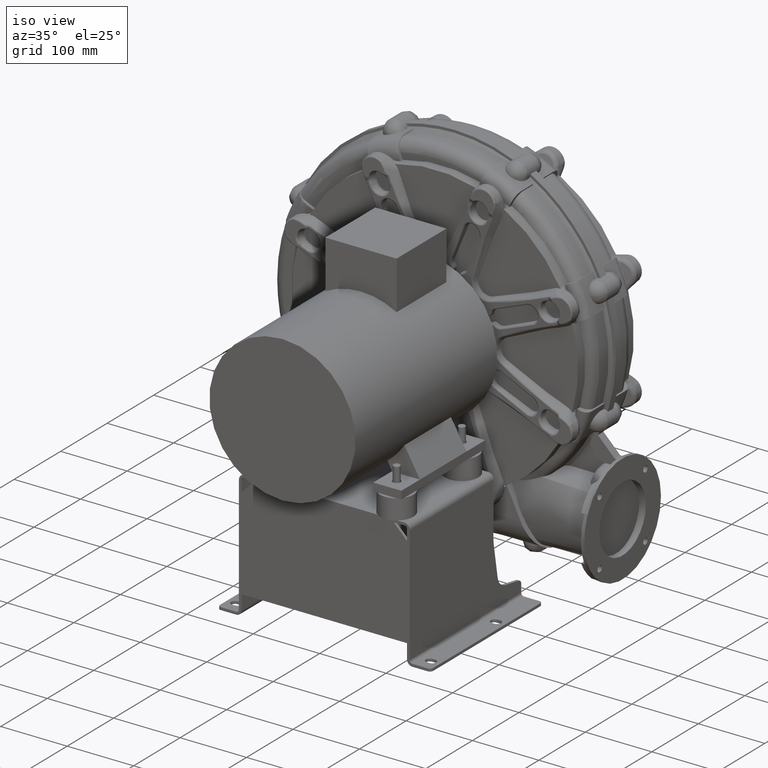
[diagram: clean part render]
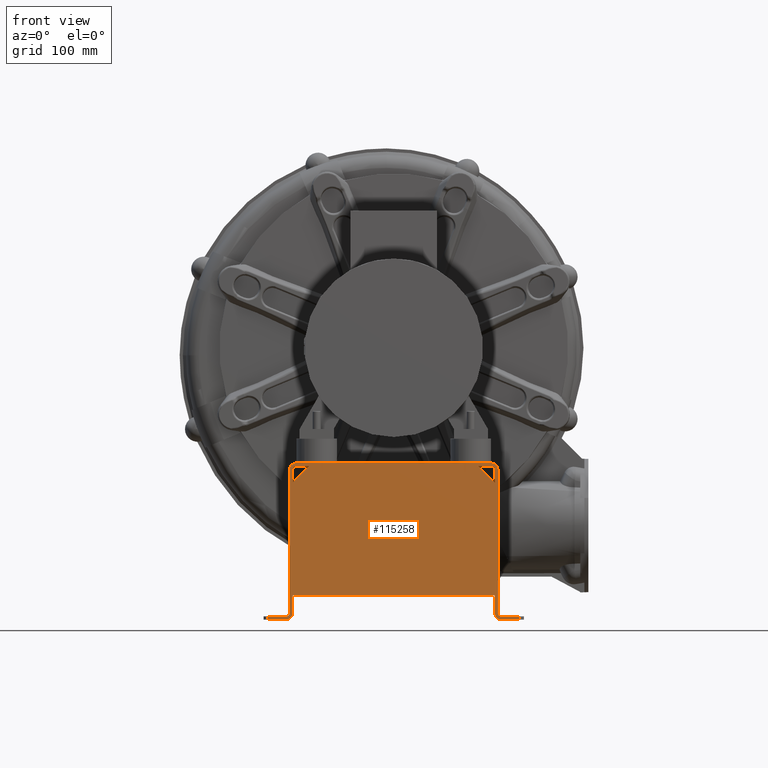
[diagram: tour spotlight — one face highlighted and labeled with its STEP entity id]
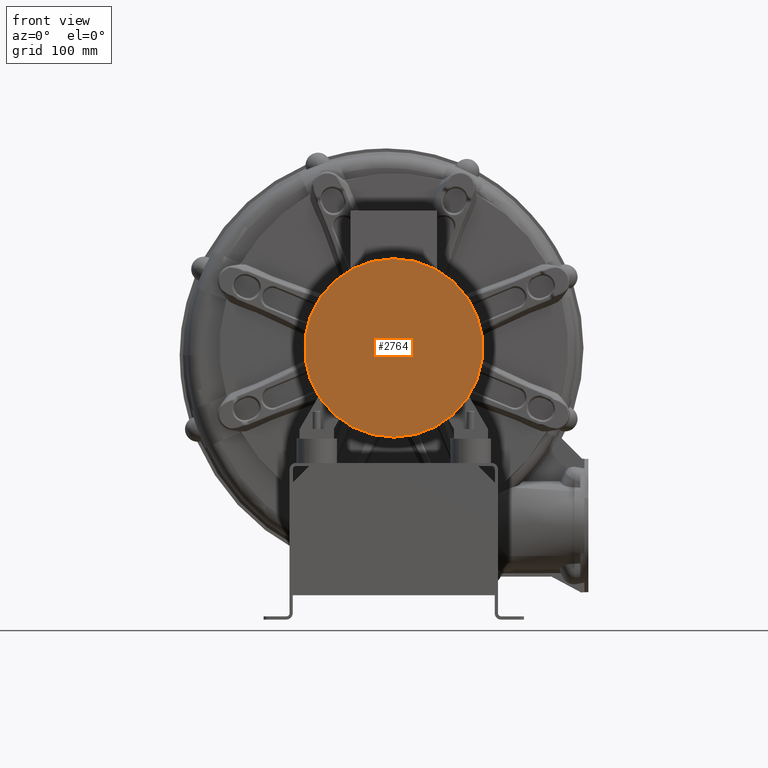
[diagram: tour spotlight — one face highlighted and labeled with its STEP entity id]
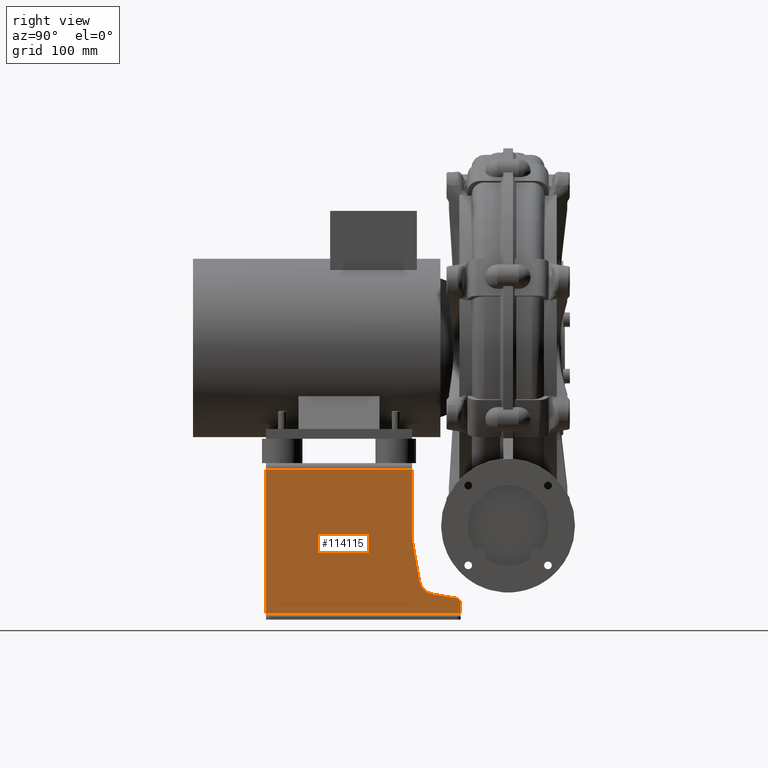
[diagram: tour spotlight — one face highlighted and labeled with its STEP entity id]
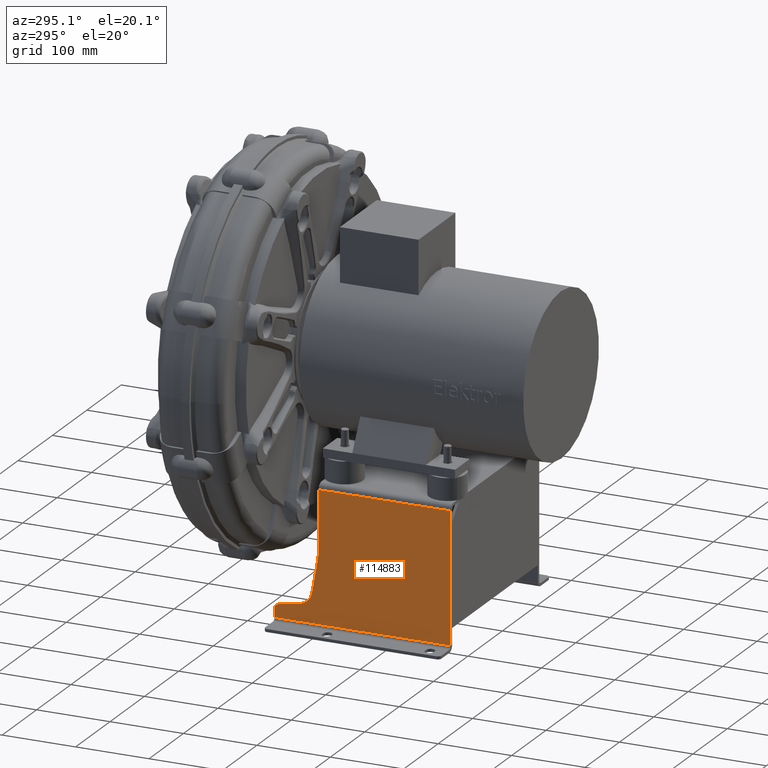
[diagram: tour spotlight — one face highlighted and labeled with its STEP entity id]
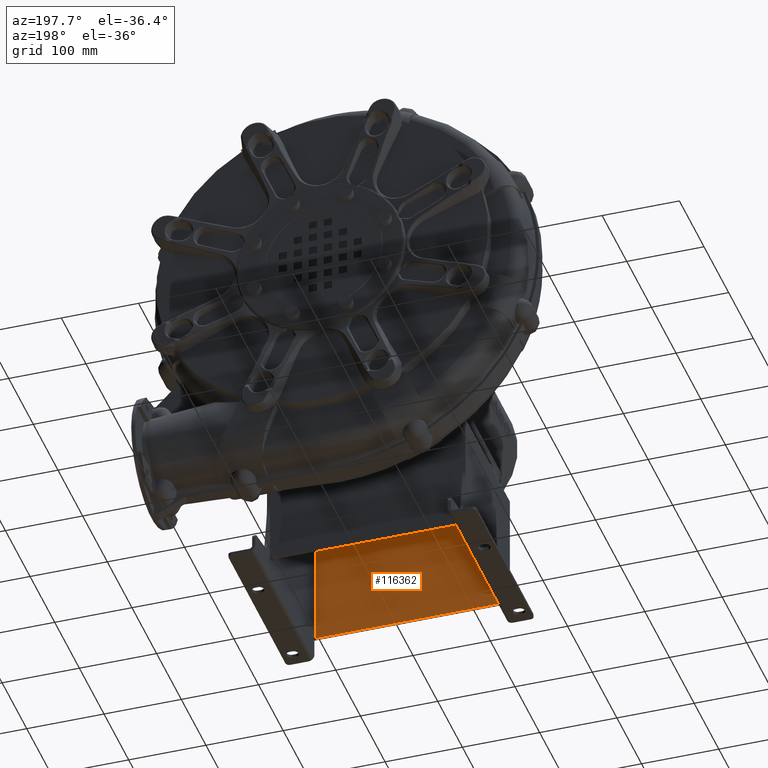
[diagram: tour spotlight — one face highlighted and labeled with its STEP entity id]
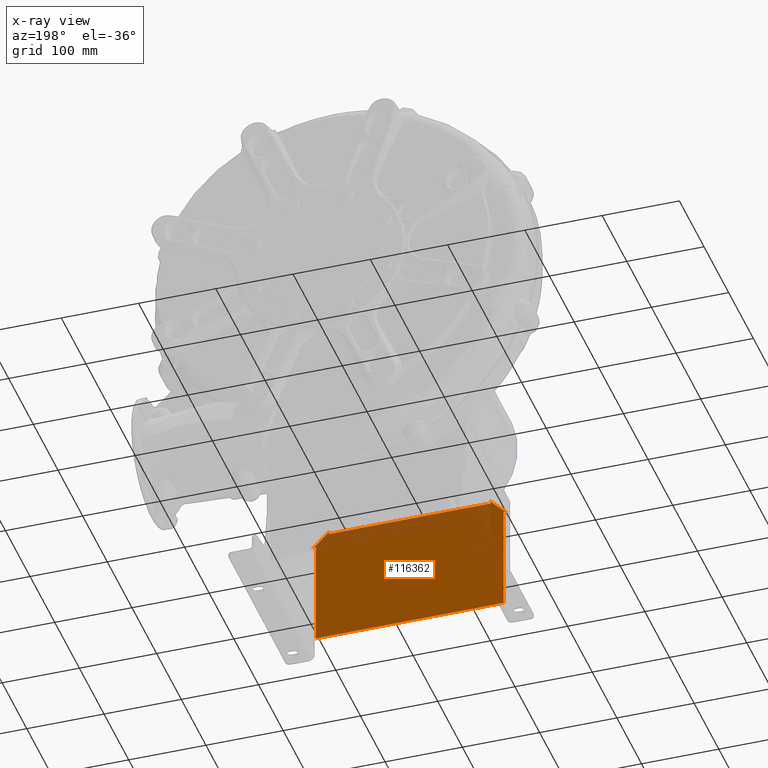
[diagram: x-ray of the same camera — body ghosted, this tour face saturated]
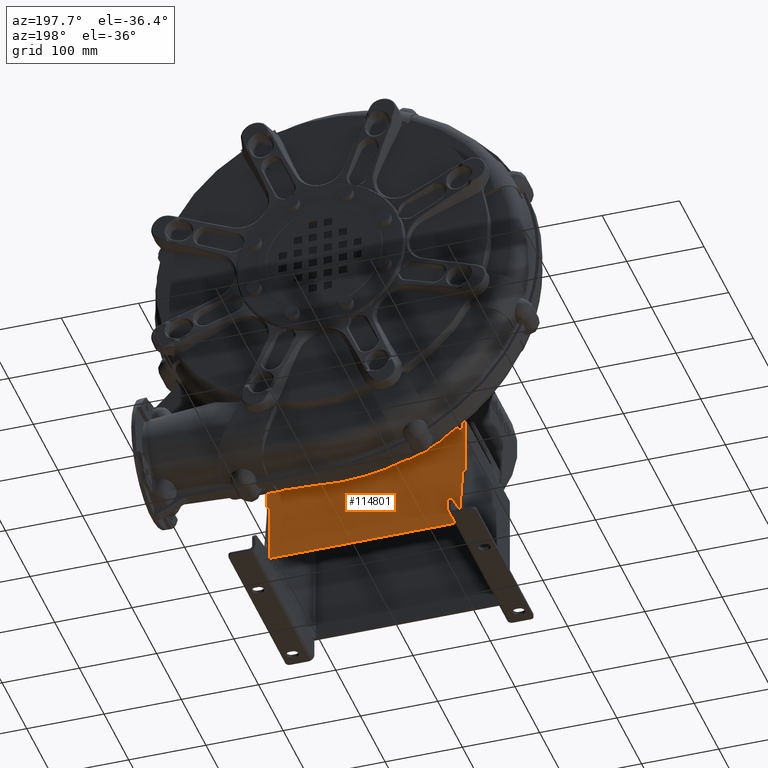
[diagram: tour spotlight — one face highlighted and labeled with its STEP entity id]
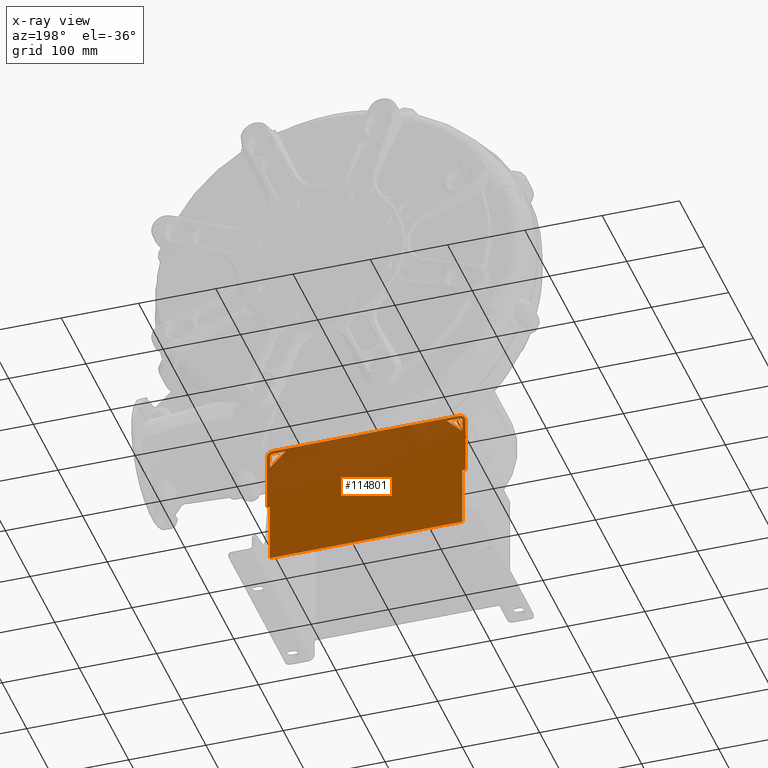
[diagram: x-ray of the same camera — body ghosted, this tour face saturated]
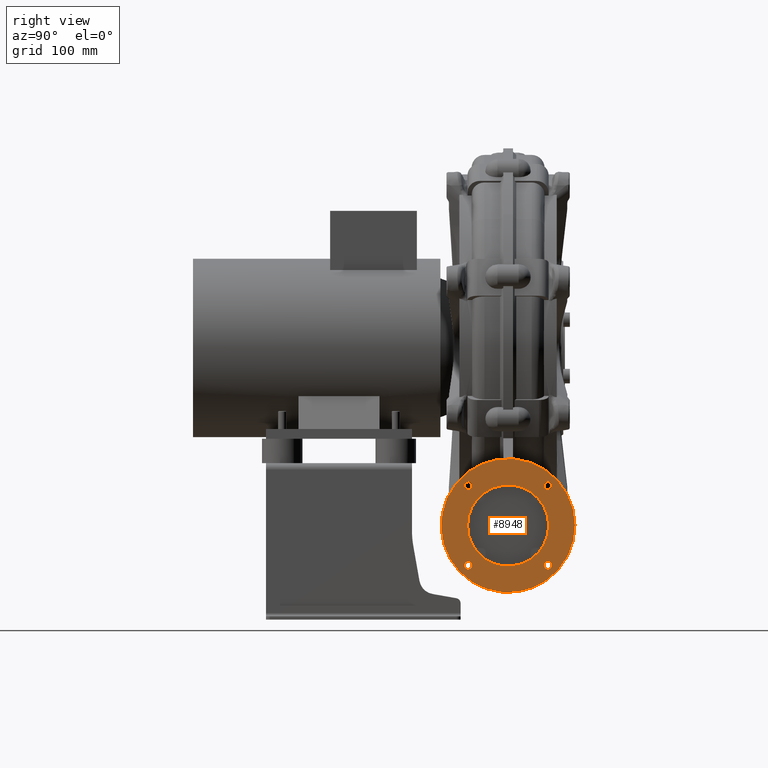
[diagram: tour spotlight — one face highlighted and labeled with its STEP entity id]
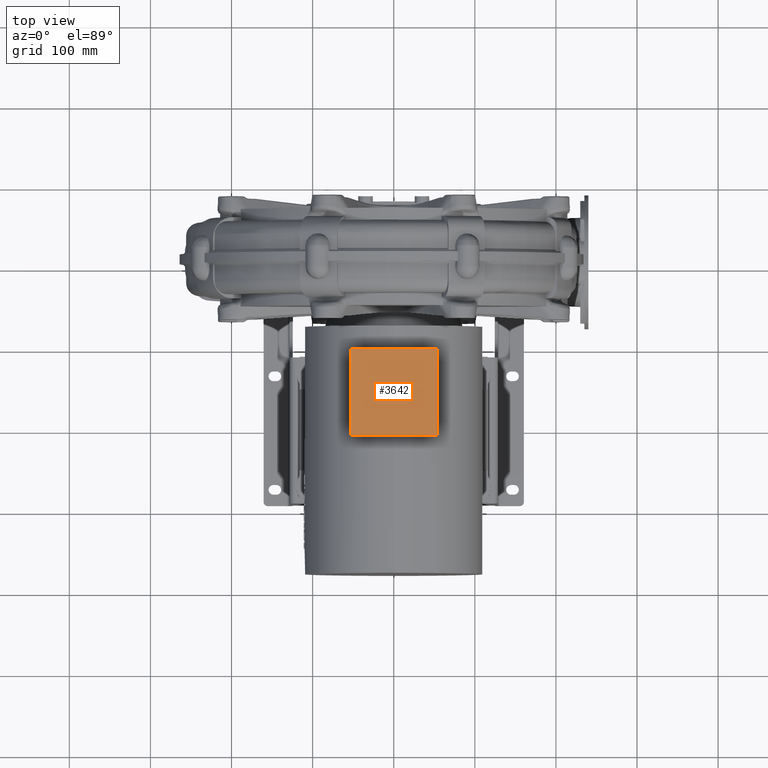
[diagram: tour spotlight — one face highlighted and labeled with its STEP entity id]
A machine part: a face-by-face anatomy tour. The part has 2756 B-rep faces; the first image is the clean iso view, then the 8 largest visible faces are spotlighted one at a time (largest first), each with its STEP entity span.

Face 1 — front view, entity #115258. In plain terms, the highlighted planar face has unit normal (0, -1, 0).
Definition (entity closure, byte-faithful):
#1541=CARTESIAN_POINT('',(120.50000000000003,-90.0,5.551115E-016));
#1542=VERTEX_POINT('',#1541);
#1549=CARTESIAN_POINT('',(104.5,-90.0,0.0));
#1550=VERTEX_POINT('',#1549);
#1551=CARTESIAN_POINT('',(120.50000000000003,-90.0,0.0));
#1552=DIRECTION('',(-1.0,0.0,0.0));
#1553=VECTOR('',#1552,16.000000000000043);
#1554=LINE('',#1551,#1553);
#1555=EDGE_CURVE('',#1542,#1550,#1554,.T.);
#1566=CARTESIAN_POINT('',(-104.49999999999996,-90.0,0.0));
#1567=VERTEX_POINT('',#1566);
#1574=CARTESIAN_POINT('',(-120.50000000000003,-90.0,5.551115E-016));
#1575=VERTEX_POINT('',#1574);
#1576=CARTESIAN_POINT('',(-104.49999999999994,-90.0,0.0));
#1577=DIRECTION('',(-1.0,0.0,0.0));
#1578=VECTOR('',#1577,16.000000000000085);
#1579=LINE('',#1576,#1578);
#1580=EDGE_CURVE('',#1567,#1575,#1579,.T.);
#2312=CARTESIAN_POINT('',(-110.0,-90.0,4.000000000000002));
#2313=VERTEX_POINT('',#2312);
#2314=CARTESIAN_POINT('',(-80.000000000000114,-90.0,4.000000000000002));
#2315=VERTEX_POINT('',#2314);
#2338=CARTESIAN_POINT('',(-80.000000000000142,-90.0,4.0));
#2339=DIRECTION('',(-1.0,0.0,0.0));
#2340=VECTOR('',#2339,29.999999999999829);
#2341=LINE('',#2338,#2340);
#2342=EDGE_CURVE('',#2315,#2313,#2341,.T.);
#113823=CARTESIAN_POINT('',(-120.50000000000003,-90.0,4.0));
#113824=VERTEX_POINT('',#113823);
#113831=CARTESIAN_POINT('',(-109.99999999999997,-90.0,4.0));
#113832=DIRECTION('',(-1.0,0.0,0.0));
#113833=VECTOR('',#113832,10.500000000000057);
#113834=LINE('',#113831,#113833);
#113835=EDGE_CURVE('',#2313,#113824,#113834,.T.);
#113838=CARTESIAN_POINT('',(80.000000000000071,-90.000000000000014,3.999999999999986));
#113839=VERTEX_POINT('',#113838);
#113840=CARTESIAN_POINT('',(80.000000000000028,-90.0,4.0));
#113841=DIRECTION('',(-1.0,0.0,0.0));
#113842=VECTOR('',#113841,160.00000000000017);
#113843=LINE('',#113840,#113842);
#113844=EDGE_CURVE('',#113839,#2315,#113843,.T.);
#113846=CARTESIAN_POINT('',(109.99999999999997,-90.000000000000014,3.999999999999986));
#113847=VERTEX_POINT('',#113846);
#113855=CARTESIAN_POINT('',(120.50000000000003,-90.0,4.0));
#113856=VERTEX_POINT('',#113855);
#113857=CARTESIAN_POINT('',(120.50000000000003,-90.0,4.0));
#113858=DIRECTION('',(-1.0,0.0,0.0));
#113859=VECTOR('',#113858,10.500000000000028);
#113860=LINE('',#113857,#113859);
#113861=EDGE_CURVE('',#113856,#113847,#113860,.T.);
#113894=CARTESIAN_POINT('',(124.50000000000001,-90.0,-4.000000000000004));
#113895=VERTEX_POINT('',#113894);
#113902=CARTESIAN_POINT('',(120.5,-90.0,-4.000000000000002));
#113903=DIRECTION('',(0.0,1.0,0.0));
#113904=DIRECTION('',(0.0,0.0,1.0));
#113905=AXIS2_PLACEMENT_3D('',#113902,#113903,#113904);
#113906=CIRCLE('',#113905,4.000000000000002);
#113907=EDGE_CURVE('',#1542,#113895,#113906,.T.);
#113925=CARTESIAN_POINT('',(128.5,-90.0,-4.000000000000004));
#113926=VERTEX_POINT('',#113925);
#113943=CARTESIAN_POINT('',(120.5,-90.0,-4.000000000000002));
#113944=DIRECTION('',(0.0,1.0,0.0));
#113945=DIRECTION('',(0.0,0.0,1.0));
#113946=AXIS2_PLACEMENT_3D('',#113943,#113944,#113945);
#113947=CIRCLE('',#113946,8.000000000000002);
#113948=EDGE_CURVE('',#113856,#113926,#113947,.T.);
#114064=CARTESIAN_POINT('',(128.5,-90.000000000000014,-181.0));
#114065=VERTEX_POINT('',#114064);
#114107=CARTESIAN_POINT('',(128.50000000000003,-90.000000000000014,-4.000000000000005));
#114108=DIRECTION('',(0.0,0.0,-1.0));
#114109=VECTOR('',#114108,177.0);
#114110=LINE('',#114107,#114109);
#114111=EDGE_CURVE('',#113926,#114065,#114110,.T.);
#114123=CARTESIAN_POINT('',(132.50000000000003,-90.000000000000014,-188.99999999999991));
#114124=VERTEX_POINT('',#114123);
#114131=CARTESIAN_POINT('',(124.50000000000001,-90.000000000000014,-181.0));
#114132=VERTEX_POINT('',#114131);
#114133=CARTESIAN_POINT('',(132.5,-90.000000000000014,-180.99999999999994));
#114134=DIRECTION('',(0.0,-1.0,0.0));
#114135=DIRECTION('',(-1.0,0.0,0.0));
#114136=AXIS2_PLACEMENT_3D('',#114133,#114134,#114135);
#114137=CIRCLE('',#114136,7.999999999999989);
#114138=EDGE_CURVE('',#114132,#114124,#114137,.T.);
#114163=CARTESIAN_POINT('',(132.50000000000003,-90.000000000000014,-184.99999999999994));
#114164=VERTEX_POINT('',#114163);
#114181=CARTESIAN_POINT('',(132.5,-90.000000000000014,-180.99999999999994));
#114182=DIRECTION('',(0.0,-1.0,0.0));
#114183=DIRECTION('',(-1.0,0.0,0.0));
#114184=AXIS2_PLACEMENT_3D('',#114181,#114182,#114183);
#114185=CIRCLE('',#114184,3.999999999999986);
#114186=EDGE_CURVE('',#114065,#114164,#114185,.T.);
#114198=CARTESIAN_POINT('',(155.5,-90.000000000000014,-185.00000000000003));
#114199=VERTEX_POINT('',#114198);
#114231=CARTESIAN_POINT('',(155.5,-90.000000000000014,-185.00000000000003));
#114232=DIRECTION('',(-1.0,0.0,0.0));
#114233=VECTOR('',#114232,23.0);
#114234=LINE('',#114231,#114233);
#114235=EDGE_CURVE('',#114199,#114164,#114234,.T.);
#114375=CARTESIAN_POINT('',(155.5,-90.000000000000014,-189.00000000000003));
#114376=VERTEX_POINT('',#114375);
#114386=CARTESIAN_POINT('',(132.5,-90.000000000000014,-189.00000000000003));
#114387=DIRECTION('',(1.0,0.0,0.0));
#114388=VECTOR('',#114387,23.0);
#114389=LINE('',#114386,#114388);
#114390=EDGE_CURVE('',#114124,#114376,#114389,.T.);
#114499=CARTESIAN_POINT('',(155.5,-90.000000000000014,-185.00000000000006));
#114500=DIRECTION('',(0.0,0.0,-1.0));
#114501=VECTOR('',#114500,3.999999999999972);
#114502=LINE('',#114499,#114501);
#114503=EDGE_CURVE('',#114199,#114376,#114502,.T.);
#114809=CARTESIAN_POINT('',(-128.5,-90.000000000000014,-181.0));
#114810=VERTEX_POINT('',#114809);
#114817=CARTESIAN_POINT('',(-128.50000000000003,-90.0,-4.000000000000003));
#114818=VERTEX_POINT('',#114817);
#114819=CARTESIAN_POINT('',(-128.50000000000003,-90.000000000000014,-4.000000000000004));
#114820=DIRECTION('',(0.0,0.0,-1.0));
#114821=VECTOR('',#114820,177.0);
#114822=LINE('',#114819,#114821);
#114823=EDGE_CURVE('',#114818,#114810,#114822,.T.);
#114889=CARTESIAN_POINT('',(-124.50000000000001,-90.0,-4.000000000000002));
#114890=VERTEX_POINT('',#114889);
#114899=CARTESIAN_POINT('',(-120.5,-90.0,-4.000000000000002));
#114900=DIRECTION('',(0.0,-1.0,0.0));
#114901=DIRECTION('',(0.0,0.0,1.0));
#114902=AXIS2_PLACEMENT_3D('',#114899,#114900,#114901);
#114903=CIRCLE('',#114902,4.000000000000002);
#114904=EDGE_CURVE('',#1575,#114890,#114903,.T.);
#114915=CARTESIAN_POINT('',(-120.5,-90.0,-4.000000000000002));
#114916=DIRECTION('',(0.0,-1.0,0.0));
#114917=DIRECTION('',(0.0,0.0,1.0));
#114918=AXIS2_PLACEMENT_3D('',#114915,#114916,#114917);
#114919=CIRCLE('',#114918,8.000000000000002);
#114920=EDGE_CURVE('',#113824,#114818,#114919,.T.);
#115071=CARTESIAN_POINT('',(-124.49999999999994,-89.999999999999986,-159.0));
#115072=VERTEX_POINT('',#115071);
#115079=CARTESIAN_POINT('',(-124.50000000000001,-90.000000000000014,-181.0));
#115080=VERTEX_POINT('',#115079);
#115081=CARTESIAN_POINT('',(-124.50000000000001,-90.000000000000014,-159.0));
#115082=DIRECTION('',(0.0,0.0,-1.0));
#115083=VECTOR('',#115082,22.0);
#115084=LINE('',#115081,#115083);
#115085=EDGE_CURVE('',#115072,#115080,#115084,.T.);
#115129=CARTESIAN_POINT('',(-124.49999999999996,-90.0,-20.0));
#115130=VERTEX_POINT('',#115129);
#115131=CARTESIAN_POINT('',(-124.50000000000003,-90.000000000000014,-4.000000000000004));
#115132=DIRECTION('',(0.0,0.0,-1.0));
#115133=VECTOR('',#115132,15.999999999999996);
#115134=LINE('',#115131,#115133);
#115135=EDGE_CURVE('',#114890,#115130,#115134,.T.);
#115148=CARTESIAN_POINT('',(160.5,-90.000000000000014,-189.00000000000003));
#115149=DIRECTION('',(0.0,-1.0,0.0));
#115150=DIRECTION('',(0.0,0.0,-1.0));
#115151=AXIS2_PLACEMENT_3D('',#115148,#115149,#115150);
#115152=PLANE('',#115151);
#115153=CARTESIAN_POINT('',(124.5,-89.999999999999986,-159.0));
#115154=VERTEX_POINT('',#115153);
#115155=CARTESIAN_POINT('',(124.50000000000001,-90.000000000000014,-159.0));
#115156=DIRECTION('',(0.0,0.0,-1.0));
#115157=VECTOR('',#115156,22.0);
#115158=LINE('',#115155,#115157);
#115159=EDGE_CURVE('',#115154,#114132,#115158,.T.);
#115160=ORIENTED_EDGE('',*,*,#115159,.T.);
#115161=ORIENTED_EDGE('',*,*,#114138,.T.);
#115162=ORIENTED_EDGE('',*,*,#114390,.T.);
#115163=ORIENTED_EDGE('',*,*,#114503,.F.);
#115164=ORIENTED_EDGE('',*,*,#114235,.T.);
#115165=ORIENTED_EDGE('',*,*,#114186,.F.);
#115166=ORIENTED_EDGE('',*,*,#114111,.F.);
#115167=ORIENTED_EDGE('',*,*,#113948,.F.);
#115168=ORIENTED_EDGE('',*,*,#113861,.T.);
#115169=CARTESIAN_POINT('',(110.0,-90.0,4.0));
#115170=DIRECTION('',(-1.0,0.0,0.0));
#115171=VECTOR('',#115170,29.999999999999972);
#115172=LINE('',#115169,#115171);
#115173=EDGE_CURVE('',#113847,#113839,#115172,.T.);
#115174=ORIENTED_EDGE('',*,*,#115173,.T.);
#115175=ORIENTED_EDGE('',*,*,#113844,.T.);
#115176=ORIENTED_EDGE('',*,*,#2342,.T.);
#115177=ORIENTED_EDGE('',*,*,#113835,.T.);
#115178=ORIENTED_EDGE('',*,*,#114920,.T.);
#115179=ORIENTED_EDGE('',*,*,#114823,.T.);
#115180=CARTESIAN_POINT('',(-132.50000000000006,-90.000000000000014,-184.99999999999997));
#115181=VERTEX_POINT('',#115180);
#115182=CARTESIAN_POINT('',(-132.5,-90.000000000000014,-180.99999999999994));
#115183=DIRECTION('',(0.0,1.0,0.0));
#115184=DIRECTION('',(1.0,0.0,0.0));
#115185=AXIS2_PLACEMENT_3D('',#115182,#115183,#115184);
#115186=CIRCLE('',#115185,3.999999999999986);
#115187=EDGE_CURVE('',#114810,#115181,#115186,.T.);
#115188=ORIENTED_EDGE('',*,*,#115187,.T.);
#115189=CARTESIAN_POINT('',(-155.5,-90.000000000000014,-185.00000000000003));
#115190=VERTEX_POINT('',#115189);
#115191=CARTESIAN_POINT('',(-155.5,-90.000000000000014,-185.00000000000003));
#115192=DIRECTION('',(1.0,0.0,0.0));
#115193=VECTOR('',#115192,22.999999999999972);
#115194=LINE('',#115191,#115193);
#115195=EDGE_CURVE('',#115190,#115181,#115194,.T.);
#115196=ORIENTED_EDGE('',*,*,#115195,.F.);
#115197=CARTESIAN_POINT('',(-155.5,-90.000000000000014,-189.00000000000003));
#115198=VERTEX_POINT('',#115197);
#115199=CARTESIAN_POINT('',(-155.5,-90.000000000000014,-189.00000000000003));
#115200=DIRECTION('',(0.0,0.0,1.0));
#115201=VECTOR('',#115200,3.999999999999972);
#115202=LINE('',#115199,#115201);
#115203=EDGE_CURVE('',#115198,#115190,#115202,.T.);
#115204=ORIENTED_EDGE('',*,*,#115203,.F.);
#115205=CARTESIAN_POINT('',(-132.50000000000006,-90.000000000000014,-189.0));
#115206=VERTEX_POINT('',#115205);
#115207=CARTESIAN_POINT('',(-132.50000000000003,-90.000000000000014,-189.00000000000003));
#115208=DIRECTION('',(-1.0,0.0,0.0));
#115209=VECTOR('',#115208,22.999999999999972);
#115210=LINE('',#115207,#115209);
#115211=EDGE_CURVE('',#115206,#115198,#115210,.T.);
#115212=ORIENTED_EDGE('',*,*,#115211,.F.);
#115213=CARTESIAN_POINT('',(-132.5,-90.000000000000014,-180.99999999999994));
#115214=DIRECTION('',(0.0,1.0,0.0));
#115215=DIRECTION('',(1.0,0.0,0.0));
#115216=AXIS2_PLACEMENT_3D('',#115213,#115214,#115215);
#115217=CIRCLE('',#115216,7.999999999999989);
#115218=EDGE_CURVE('',#115080,#115206,#115217,.T.);
#115219=ORIENTED_EDGE('',*,*,#115218,.F.);
#115220=ORIENTED_EDGE('',*,*,#115085,.F.);
#115221=CARTESIAN_POINT('',(-124.49999999999994,-89.999999999999986,-159.0));
#115222=DIRECTION('',(1.0,0.0,0.0));
#115223=VECTOR('',#115222,248.99999999999994);
#115224=LINE('',#115221,#115223);
#115225=EDGE_CURVE('',#115072,#115154,#115224,.T.);
#115226=ORIENTED_EDGE('',*,*,#115225,.T.);
#115227=EDGE_LOOP('',(#115160,#115161,#115162,#115163,#115164,#115165,#115166,#115167,#115168,#115174,#115175,#115176,#115177,#115178,#115179,#115188,#115196,#115204,#115212,#115219,#115220,#115226));
#115228=FACE_OUTER_BOUND('',#115227,.T.);
#115229=CARTESIAN_POINT('',(124.5,-90.0,-20.0));
#115230=VERTEX_POINT('',#115229);
#115231=CARTESIAN_POINT('',(124.5,-90.0,-20.0));
#115232=DIRECTION('',(-0.707106781186547,0.0,0.707106781186548));
#115233=VECTOR('',#115232,28.284271247461906);
#115234=LINE('',#115231,#115233);
#115235=EDGE_CURVE('',#115230,#1550,#115234,.T.);
#115236=ORIENTED_EDGE('',*,*,#115235,.T.);
#115237=ORIENTED_EDGE('',*,*,#1555,.F.);
#115238=ORIENTED_EDGE('',*,*,#113907,.T.);
#115239=CARTESIAN_POINT('',(124.50000000000003,-90.000000000000014,-4.000000000000005));
#115240=DIRECTION('',(0.0,0.0,-1.0));
#115241=VECTOR('',#115240,15.999999999999995);
#115242=LINE('',#115239,#115241);
#115243=EDGE_CURVE('',#113895,#115230,#115242,.T.);
#115244=ORIENTED_EDGE('',*,*,#115243,.T.);
#115245=EDGE_LOOP('',(#115236,#115237,#115238,#115244));
#115246=FACE_BOUND('',#115245,.T.);
#115247=CARTESIAN_POINT('',(-104.49999999999996,-90.0,0.0));
#115248=DIRECTION('',(-0.707106781186547,0.0,-0.707106781186547));
#115249=VECTOR('',#115248,28.284271247461902);
#115250=LINE('',#115247,#115249);
#115251=EDGE_CURVE('',#1567,#115130,#115250,.T.);
#115252=ORIENTED_EDGE('',*,*,#115251,.T.);
#115253=ORIENTED_EDGE('',*,*,#115135,.F.);
#115254=ORIENTED_EDGE('',*,*,#114904,.F.);
#115255=ORIENTED_EDGE('',*,*,#1580,.F.);
#115256=EDGE_LOOP('',(#115252,#115253,#115254,#115255));
#115257=FACE_BOUND('',#115256,.T.);
#115258=ADVANCED_FACE('',(#115228,#115246,#115257),#115152,.T.);

Face 2 — front view, entity #2764. In plain terms, the highlighted planar face has unit normal (0, -1, 0).
Definition (entity closure, byte-faithful):
#2748=CARTESIAN_POINT('',(4.853846E-014,-180.00000000000026,200.9999999999998));
#2749=DIRECTION('',(0.0,-1.0,0.0));
#2750=DIRECTION('',(1.0,0.0,0.0));
#2751=AXIS2_PLACEMENT_3D('',#2748,#2749,#2750);
#2752=PLANE('',#2751);
#2753=CARTESIAN_POINT('',(4.970155E-014,-180.00000000000026,255.9999999999998));
#2754=VERTEX_POINT('',#2753);
#2755=CARTESIAN_POINT('',(4.737537E-014,-180.00000000000026,145.99999999999983));
#2756=DIRECTION('',(0.0,-1.0,0.0));
#2757=DIRECTION('',(0.0,0.0,1.0));
#2758=AXIS2_PLACEMENT_3D('',#2755,#2756,#2757);
#2759=CIRCLE('',#2758,110.0);
#2760=EDGE_CURVE('',#2754,#2754,#2759,.T.);
#2761=ORIENTED_EDGE('',*,*,#2760,.T.);
#2762=EDGE_LOOP('',(#2761));
#2763=FACE_OUTER_BOUND('',#2762,.T.);
#2764=ADVANCED_FACE('',(#2763),#2752,.T.);

Face 3 — right view, entity #114115. In plain terms, the highlighted planar face has unit normal (1, 0, 0).
Definition (entity closure, byte-faithful):
#113925=CARTESIAN_POINT('',(128.5,-90.0,-4.000000000000004));
#113926=VERTEX_POINT('',#113925);
#113927=CARTESIAN_POINT('',(128.49999999999997,90.000000000000071,-3.999999999999968));
#113928=VERTEX_POINT('',#113927);
#113929=CARTESIAN_POINT('',(128.5,-89.999999999999986,-4.000000000000021));
#113930=DIRECTION('',(0.0,1.0,0.0));
#113931=VECTOR('',#113930,180.00000000000006);
#113932=LINE('',#113929,#113931);
#113933=EDGE_CURVE('',#113926,#113928,#113932,.T.);
#113969=CARTESIAN_POINT('',(128.49999999999997,99.209107246065628,-141.22744249952132));
#113970=VERTEX_POINT('',#113969);
#113977=CARTESIAN_POINT('',(128.49999999999997,115.43229875297116,-157.45063400642687));
#113978=VERTEX_POINT('',#113977);
#113979=CARTESIAN_POINT('',(128.49999999999997,118.90526230630977,-137.7544789461827));
#113980=DIRECTION('',(1.0,2.166390E-016,3.819930E-017));
#113981=DIRECTION('',(2.199810E-016,-0.984807753012208,-0.17364817766693));
#113982=AXIS2_PLACEMENT_3D('',#113979,#113980,#113981);
#113983=CIRCLE('',#113982,20.0);
#113984=EDGE_CURVE('',#113970,#113978,#113983,.T.);
#114009=CARTESIAN_POINT('',(128.49999999999997,144.62871315483508,-162.59874960542066));
#114010=VERTEX_POINT('',#114009);
#114011=CARTESIAN_POINT('',(128.49999999999997,115.43229875297116,-157.45063400642687));
#114012=DIRECTION('',(0.0,0.984807753012208,-0.17364817766693));
#114013=VECTOR('',#114012,29.646816155296847);
#114014=LINE('',#114011,#114013);
#114015=EDGE_CURVE('',#113978,#114010,#114014,.T.);
#114041=CARTESIAN_POINT('',(128.49999999999997,150.00000000000003,-169.00000000000003));
#114042=VERTEX_POINT('',#114041);
#114043=CARTESIAN_POINT('',(128.49999999999997,143.50000000000006,-169.00000000000003));
#114044=DIRECTION('',(-1.0,0.0,0.0));
#114045=DIRECTION('',(0.0,-1.0,0.0));
#114046=AXIS2_PLACEMENT_3D('',#114043,#114044,#114045);
#114047=CIRCLE('',#114046,6.5);
#114048=EDGE_CURVE('',#114010,#114042,#114047,.T.);
#114059=CARTESIAN_POINT('',(128.5,1.332268E-014,-92.5));
#114060=DIRECTION('',(1.0,0.0,0.0));
#114061=DIRECTION('',(0.0,0.0,-1.0));
#114062=AXIS2_PLACEMENT_3D('',#114059,#114060,#114061);
#114063=PLANE('',#114062);
#114064=CARTESIAN_POINT('',(128.5,-90.000000000000014,-181.0));
#114065=VERTEX_POINT('',#114064);
#114066=CARTESIAN_POINT('',(128.49999999999994,150.00000000000006,-181.0));
#114067=VERTEX_POINT('',#114066);
#114068=CARTESIAN_POINT('',(128.5,-90.000000000000028,-181.0));
#114069=DIRECTION('',(0.0,1.0,0.0));
#114070=VECTOR('',#114069,240.00000000000009);
#114071=LINE('',#114068,#114070);
#114072=EDGE_CURVE('',#114065,#114067,#114071,.T.);
#114073=ORIENTED_EDGE('',*,*,#114072,.T.);
#114074=CARTESIAN_POINT('',(128.49999999999997,150.00000000000003,-169.00000000000003));
#114075=DIRECTION('',(0.0,0.0,-1.0));
#114076=VECTOR('',#114075,12.0);
#114077=LINE('',#114074,#114076);
#114078=EDGE_CURVE('',#114042,#114067,#114077,.T.);
#114079=ORIENTED_EDGE('',*,*,#114078,.F.);
#114080=ORIENTED_EDGE('',*,*,#114048,.F.);
#114081=ORIENTED_EDGE('',*,*,#114015,.F.);
#114082=ORIENTED_EDGE('',*,*,#113984,.F.);
#114083=CARTESIAN_POINT('',(128.49999999999997,91.519224698779297,-97.615951414100891));
#114084=VERTEX_POINT('',#114083);
#114085=CARTESIAN_POINT('',(128.49999999999997,91.519224698779297,-97.615951414100891));
#114086=DIRECTION('',(0.0,0.173648177666931,-0.984807753012208));
#114087=VECTOR('',#114086,44.284268632153832);
#114088=LINE('',#114085,#114087);
#114089=EDGE_CURVE('',#114084,#113970,#114088,.T.);
#114090=ORIENTED_EDGE('',*,*,#114089,.F.);
#114091=CARTESIAN_POINT('',(128.49999999999997,90.000000000000057,-80.251133647407826));
#114092=VERTEX_POINT('',#114091);
#114093=CARTESIAN_POINT('',(128.5,190.00000000000006,-80.251133647407826));
#114094=DIRECTION('',(1.0,0.0,0.0));
#114095=DIRECTION('',(0.0,-0.996194698091745,-0.087155742747658));
#114096=AXIS2_PLACEMENT_3D('',#114093,#114094,#114095);
#114097=CIRCLE('',#114096,99.999999999999986);
#114098=EDGE_CURVE('',#114092,#114084,#114097,.T.);
#114099=ORIENTED_EDGE('',*,*,#114098,.F.);
#114100=CARTESIAN_POINT('',(128.49999999999997,90.000000000000057,-80.25113364740784));
#114101=DIRECTION('',(0.0,0.0,1.0));
#114102=VECTOR('',#114101,76.251133647407869);
#114103=LINE('',#114100,#114102);
#114104=EDGE_CURVE('',#114092,#113928,#114103,.T.);
#114105=ORIENTED_EDGE('',*,*,#114104,.T.);
#114106=ORIENTED_EDGE('',*,*,#113933,.F.);
#114107=CARTESIAN_POINT('',(128.50000000000003,-90.000000000000014,-4.000000000000005));
#114108=DIRECTION('',(0.0,0.0,-1.0));
#114109=VECTOR('',#114108,177.0);
#114110=LINE('',#114107,#114109);
#114111=EDGE_CURVE('',#113926,#114065,#114110,.T.);
#114112=ORIENTED_EDGE('',*,*,#114111,.T.);
#114113=EDGE_LOOP('',(#114073,#114079,#114080,#114081,#114082,#114090,#114099,#114105,#114106,#114112));
#114114=FACE_OUTER_BOUND('',#114113,.T.);
#114115=ADVANCED_FACE('',(#114114),#114063,.T.);

Face 4 — auxiliary view, entity #114883. In plain terms, the highlighted planar face has unit normal (1, 0, 0).
Definition (entity closure, byte-faithful):
#114724=CARTESIAN_POINT('',(-128.49999999999997,90.000000000000057,-80.251133647407826));
#114725=VERTEX_POINT('',#114724);
#114732=CARTESIAN_POINT('',(-128.49999999999997,90.000000000000071,-4.000000000000003));
#114733=VERTEX_POINT('',#114732);
#114734=CARTESIAN_POINT('',(-128.49999999999997,90.000000000000057,-80.25113364740784));
#114735=DIRECTION('',(0.0,0.0,1.0));
#114736=VECTOR('',#114735,76.25113364740784);
#114737=LINE('',#114734,#114736);
#114738=EDGE_CURVE('',#114725,#114733,#114737,.T.);
#114802=CARTESIAN_POINT('',(-128.5,1.332268E-014,-92.5));
#114803=DIRECTION('',(1.0,0.0,0.0));
#114804=DIRECTION('',(0.0,0.0,-1.0));
#114805=AXIS2_PLACEMENT_3D('',#114802,#114803,#114804);
#114806=PLANE('',#114805);
#114807=CARTESIAN_POINT('',(-128.49999999999994,150.00000000000006,-181.0));
#114808=VERTEX_POINT('',#114807);
#114809=CARTESIAN_POINT('',(-128.5,-90.000000000000014,-181.0));
#114810=VERTEX_POINT('',#114809);
#114811=CARTESIAN_POINT('',(-128.49999999999994,150.00000000000006,-181.0));
#114812=DIRECTION('',(0.0,-1.0,0.0));
#114813=VECTOR('',#114812,240.00000000000009);
#114814=LINE('',#114811,#114813);
#114815=EDGE_CURVE('',#114808,#114810,#114814,.T.);
#114816=ORIENTED_EDGE('',*,*,#114815,.T.);
#114817=CARTESIAN_POINT('',(-128.50000000000003,-90.0,-4.000000000000003));
#114818=VERTEX_POINT('',#114817);
#114819=CARTESIAN_POINT('',(-128.50000000000003,-90.000000000000014,-4.000000000000004));
#114820=DIRECTION('',(0.0,0.0,-1.0));
#114821=VECTOR('',#114820,177.0);
#114822=LINE('',#114819,#114821);
#114823=EDGE_CURVE('',#114818,#114810,#114822,.T.);
#114824=ORIENTED_EDGE('',*,*,#114823,.F.);
#114825=CARTESIAN_POINT('',(-128.49999999999997,90.000000000000057,-4.000000000000004));
#114826=DIRECTION('',(0.0,-1.0,0.0));
#114827=VECTOR('',#114826,180.00000000000006);
#114828=LINE('',#114825,#114827);
#114829=EDGE_CURVE('',#114733,#114818,#114828,.T.);
#114830=ORIENTED_EDGE('',*,*,#114829,.F.);
#114831=ORIENTED_EDGE('',*,*,#114738,.F.);
#114832=CARTESIAN_POINT('',(-128.49999999999997,91.519224698779297,-97.615951414100891));
#114833=VERTEX_POINT('',#114832);
#114834=CARTESIAN_POINT('',(-128.5,190.00000000000006,-80.251133647407826));
#114835=DIRECTION('',(-1.0,0.0,0.0));
#114836=DIRECTION('',(0.0,-0.996194698091745,-0.087155742747658));
#114837=AXIS2_PLACEMENT_3D('',#114834,#114835,#114836);
#114838=CIRCLE('',#114837,99.999999999999986);
#114839=EDGE_CURVE('',#114833,#114725,#114838,.T.);
#114840=ORIENTED_EDGE('',*,*,#114839,.F.);
#114841=CARTESIAN_POINT('',(-128.49999999999997,99.209107246065628,-141.22744249952132));
#114842=VERTEX_POINT('',#114841);
#114843=CARTESIAN_POINT('',(-128.49999999999997,91.519224698779297,-97.615951414100891));
#114844=DIRECTION('',(0.0,0.173648177666931,-0.984807753012208));
#114845=VECTOR('',#114844,44.284268632153832);
#114846=LINE('',#114843,#114845);
#114847=EDGE_CURVE('',#114833,#114842,#114846,.T.);
#114848=ORIENTED_EDGE('',*,*,#114847,.T.);
#114849=CARTESIAN_POINT('',(-128.49999999999997,115.43229875297116,-157.45063400642687));
#114850=VERTEX_POINT('',#114849);
#114851=CARTESIAN_POINT('',(-128.49999999999997,118.90526230630977,-137.7544789461827));
#114852=DIRECTION('',(1.0,-2.166390E-016,-3.819930E-017));
#114853=DIRECTION('',(-2.199810E-016,-0.984807753012208,-0.17364817766693));
#114854=AXIS2_PLACEMENT_3D('',#114851,#114852,#114853);
#114855=CIRCLE('',#114854,20.0);
#114856=EDGE_CURVE('',#114842,#114850,#114855,.T.);
#114857=ORIENTED_EDGE('',*,*,#114856,.T.);
#114858=CARTESIAN_POINT('',(-128.49999999999997,144.62871315483508,-162.59874960542066));
#114859=VERTEX_POINT('',#114858);
#114860=CARTESIAN_POINT('',(-128.49999999999997,115.43229875297116,-157.45063400642687));
#114861=DIRECTION('',(0.0,0.984807753012208,-0.17364817766693));
#114862=VECTOR('',#114861,29.646816155296847);
#114863=LINE('',#114860,#114862);
#114864=EDGE_CURVE('',#114850,#114859,#114863,.T.);
#114865=ORIENTED_EDGE('',*,*,#114864,.T.);
#114866=CARTESIAN_POINT('',(-128.49999999999997,150.00000000000003,-169.00000000000003));
#114867=VERTEX_POINT('',#114866);
#114868=CARTESIAN_POINT('',(-128.49999999999997,143.50000000000006,-169.00000000000003));
#114869=DIRECTION('',(-1.0,0.0,0.0));
#114870=DIRECTION('',(0.0,-1.0,0.0));
#114871=AXIS2_PLACEMENT_3D('',#114868,#114869,#114870);
#114872=CIRCLE('',#114871,6.5);
#114873=EDGE_CURVE('',#114859,#114867,#114872,.T.);
#114874=ORIENTED_EDGE('',*,*,#114873,.T.);
#114875=CARTESIAN_POINT('',(-128.49999999999997,150.00000000000003,-169.00000000000003));
#114876=DIRECTION('',(0.0,0.0,-1.0));
#114877=VECTOR('',#114876,12.0);
#114878=LINE('',#114875,#114877);
#114879=EDGE_CURVE('',#114867,#114808,#114878,.T.);
#114880=ORIENTED_EDGE('',*,*,#114879,.T.);
#114881=EDGE_LOOP('',(#114816,#114824,#114830,#114831,#114840,#114848,#114857,#114865,#114874,#114880));
#114882=FACE_OUTER_BOUND('',#114881,.T.);
#114883=ADVANCED_FACE('',(#114882),#114806,.F.);

Face 5 — auxiliary view, entity #116362. An x-ray twin of the same camera follows (body ghosted, this face saturated) — the face is partly hidden behind the body. In plain terms, the highlighted planar face has unit normal (0, -1, 0).
Definition (entity closure, byte-faithful):
#73=CARTESIAN_POINT('',(121.5,-86.0,-20.000000000000053));
#74=VERTEX_POINT('',#73);
#91=CARTESIAN_POINT('',(121.49999999999999,-85.999999999999972,-159.0));
#92=VERTEX_POINT('',#91);
#99=CARTESIAN_POINT('',(121.49999999999999,-86.000000000000014,-20.000000000000057));
#100=DIRECTION('',(0.0,0.0,-1.0));
#101=VECTOR('',#100,138.99999999999994);
#102=LINE('',#99,#101);
#103=EDGE_CURVE('',#74,#92,#102,.T.);
#113=CARTESIAN_POINT('',(124.5,-86.0,-20.0));
#114=VERTEX_POINT('',#113);
#115=CARTESIAN_POINT('',(124.5,-86.0,-20.000000000000068));
#116=DIRECTION('',(-1.0,0.0,0.0));
#117=VECTOR('',#116,3.0);
#118=LINE('',#115,#117);
#119=EDGE_CURVE('',#114,#74,#118,.T.);
#136=CARTESIAN_POINT('',(-121.49999999999993,-85.999999999999972,-159.0));
#137=VERTEX_POINT('',#136);
#154=CARTESIAN_POINT('',(-121.49999999999994,-86.0,-20.0));
#155=VERTEX_POINT('',#154);
#162=CARTESIAN_POINT('',(-121.49999999999991,-86.0,-159.0));
#163=DIRECTION('',(0.0,0.0,1.0));
#164=VECTOR('',#163,139.0);
#165=LINE('',#162,#164);
#166=EDGE_CURVE('',#137,#155,#165,.T.);
#176=CARTESIAN_POINT('',(-124.49999999999996,-86.0,-20.0));
#177=VERTEX_POINT('',#176);
#184=CARTESIAN_POINT('',(-121.49999999999994,-86.0,-20.0));
#185=DIRECTION('',(-1.0,0.0,0.0));
#186=VECTOR('',#185,3.000000000000014);
#187=LINE('',#184,#186);
#188=EDGE_CURVE('',#155,#177,#187,.T.);
#411=CARTESIAN_POINT('',(-104.49999999999991,-86.0,-3.0));
#412=VERTEX_POINT('',#411);
#429=CARTESIAN_POINT('',(104.5,-86.0,-3.0));
#430=VERTEX_POINT('',#429);
#437=CARTESIAN_POINT('',(-104.49999999999991,-86.000000000000014,-3.000000000000009));
#438=DIRECTION('',(1.0,0.0,0.0));
#439=VECTOR('',#438,208.99999999999991);
#440=LINE('',#437,#439);
#441=EDGE_CURVE('',#412,#430,#440,.T.);
#452=CARTESIAN_POINT('',(-104.49999999999996,-86.0,0.0));
#453=VERTEX_POINT('',#452);
#454=CARTESIAN_POINT('',(-104.49999999999994,-86.0,0.0));
#455=DIRECTION('',(0.0,0.0,-1.0));
#456=VECTOR('',#455,2.999999999999993);
#457=LINE('',#454,#456);
#458=EDGE_CURVE('',#453,#412,#457,.T.);
#474=CARTESIAN_POINT('',(104.5,-86.0,0.0));
#475=VERTEX_POINT('',#474);
#476=CARTESIAN_POINT('',(104.50000000000001,-86.0,-2.999999999999993));
#477=DIRECTION('',(0.0,0.0,1.0));
#478=VECTOR('',#477,2.999999999999993);
#479=LINE('',#476,#478);
#480=EDGE_CURVE('',#430,#475,#479,.T.);
#116330=CARTESIAN_POINT('',(0.0,-86.0,-82.059382801413392));
#116331=DIRECTION('',(0.0,-1.0,0.0));
#116332=DIRECTION('',(1.0,0.0,0.0));
#116333=AXIS2_PLACEMENT_3D('',#116330,#116331,#116332);
#116334=PLANE('',#116333);
#116335=ORIENTED_EDGE('',*,*,#103,.T.);
#116336=CARTESIAN_POINT('',(-121.49999999999994,-85.999999999999972,-159.0));
#116337=DIRECTION('',(1.0,0.0,0.0));
#116338=VECTOR('',#116337,242.99999999999994);
#116339=LINE('',#116336,#116338);
#116340=EDGE_CURVE('',#137,#92,#116339,.T.);
#116341=ORIENTED_EDGE('',*,*,#116340,.F.);
#116342=ORIENTED_EDGE('',*,*,#166,.T.);
#116343=ORIENTED_EDGE('',*,*,#188,.T.);
#116344=CARTESIAN_POINT('',(-104.49999999999996,-86.0,0.0));
#116345=DIRECTION('',(-0.707106781186547,0.0,-0.707106781186547));
#116346=VECTOR('',#116345,28.284271247461902);
#116347=LINE('',#116344,#116346);
#116348=EDGE_CURVE('',#453,#177,#116347,.T.);
#116349=ORIENTED_EDGE('',*,*,#116348,.F.);
#116350=ORIENTED_EDGE('',*,*,#458,.T.);
#116351=ORIENTED_EDGE('',*,*,#441,.T.);
#116352=ORIENTED_EDGE('',*,*,#480,.T.);
#116353=CARTESIAN_POINT('',(124.5,-86.0,-20.0));
#116354=DIRECTION('',(-0.707106781186547,0.0,0.707106781186548));
#116355=VECTOR('',#116354,28.284271247461906);
#116356=LINE('',#116353,#116355);
#116357=EDGE_CURVE('',#114,#475,#116356,.T.);
#116358=ORIENTED_EDGE('',*,*,#116357,.F.);
#116359=ORIENTED_EDGE('',*,*,#119,.T.);
#116360=EDGE_LOOP('',(#116335,#116341,#116342,#116343,#116349,#116350,#116351,#116352,#116358,#116359));
#116361=FACE_OUTER_BOUND('',#116360,.T.);
#116362=ADVANCED_FACE('',(#116361),#116334,.F.);

Face 6 — auxiliary view, entity #114801. An x-ray twin of the same camera follows (body ghosted, this face saturated) — the face is partly hidden behind the body. In plain terms, the highlighted planar face has unit normal (0, 1, 0).
Definition (entity closure, byte-faithful):
#1525=CARTESIAN_POINT('',(104.49999999999997,90.000000000000128,0.0));
#1526=VERTEX_POINT('',#1525);
#1533=CARTESIAN_POINT('',(120.49999999999999,90.000000000000071,5.551115E-016));
#1534=VERTEX_POINT('',#1533);
#1535=CARTESIAN_POINT('',(104.49999999999997,90.000000000000043,0.0));
#1536=DIRECTION('',(1.0,0.0,0.0));
#1537=VECTOR('',#1536,16.000000000000028);
#1538=LINE('',#1535,#1537);
#1539=EDGE_CURVE('',#1526,#1534,#1538,.T.);
#1582=CARTESIAN_POINT('',(-120.49999999999999,90.000000000000071,5.551115E-016));
#1583=VERTEX_POINT('',#1582);
#1590=CARTESIAN_POINT('',(-104.49999999999997,90.000000000000114,0.0));
#1591=VERTEX_POINT('',#1590);
#1592=CARTESIAN_POINT('',(-120.49999999999999,90.0,0.0));
#1593=DIRECTION('',(1.0,0.0,0.0));
#1594=VECTOR('',#1593,16.000000000000014);
#1595=LINE('',#1592,#1594);
#1596=EDGE_CURVE('',#1583,#1591,#1595,.T.);
#1991=CARTESIAN_POINT('',(-79.999999999999957,90.0,3.999999999999999));
#1992=VERTEX_POINT('',#1991);
#1993=CARTESIAN_POINT('',(-110.00000000000007,90.0,3.999999999999999));
#1994=VERTEX_POINT('',#1993);
#2017=CARTESIAN_POINT('',(-110.00000000000007,90.0,4.0));
#2018=DIRECTION('',(1.0,0.0,0.0));
#2019=VECTOR('',#2018,30.000000000000128);
#2020=LINE('',#2017,#2019);
#2021=EDGE_CURVE('',#1994,#1992,#2020,.T.);
#2634=CARTESIAN_POINT('',(110.0,90.000000000000028,3.999999999999999));
#2635=VERTEX_POINT('',#2634);
#2636=CARTESIAN_POINT('',(80.0,90.000000000000028,3.999999999999999));
#2637=VERTEX_POINT('',#2636);
#2660=CARTESIAN_POINT('',(79.999999999999972,90.000000000000043,4.0));
#2661=DIRECTION('',(1.0,0.0,0.0));
#2662=VECTOR('',#2661,30.0);
#2663=LINE('',#2660,#2662);
#2664=EDGE_CURVE('',#2637,#2635,#2663,.T.);
#113815=CARTESIAN_POINT('',(-120.49999999999999,90.000000000000071,4.0));
#113816=VERTEX_POINT('',#113815);
#113817=CARTESIAN_POINT('',(-120.49999999999999,90.0,4.0));
#113818=DIRECTION('',(1.0,0.0,0.0));
#113819=VECTOR('',#113818,10.499999999999915);
#113820=LINE('',#113817,#113819);
#113821=EDGE_CURVE('',#113816,#1994,#113820,.T.);
#113863=CARTESIAN_POINT('',(120.49999999999999,90.000000000000071,4.0));
#113864=VERTEX_POINT('',#113863);
#113871=CARTESIAN_POINT('',(109.99999999999997,90.000000000000043,4.0));
#113872=DIRECTION('',(1.0,0.0,0.0));
#113873=VECTOR('',#113872,10.500000000000028);
#113874=LINE('',#113871,#113873);
#113875=EDGE_CURVE('',#2635,#113864,#113874,.T.);
#113878=CARTESIAN_POINT('',(-79.999999999999943,90.000000000000014,4.0));
#113879=DIRECTION('',(1.0,0.0,0.0));
#113880=VECTOR('',#113879,159.99999999999991);
#113881=LINE('',#113878,#113880);
#113882=EDGE_CURVE('',#1992,#2637,#113881,.T.);
#113892=CARTESIAN_POINT('',(124.49999999999997,90.000000000000071,-3.999999999999968));
#113893=VERTEX_POINT('',#113892);
#113910=CARTESIAN_POINT('',(120.49999999999997,90.000000000000071,-4.000000000000002));
#113911=DIRECTION('',(0.0,1.0,0.0));
#113912=DIRECTION('',(0.0,0.0,1.0));
#113913=AXIS2_PLACEMENT_3D('',#113910,#113911,#113912);
#113914=CIRCLE('',#113913,4.000000000000002);
#113915=EDGE_CURVE('',#1534,#113893,#113914,.T.);
#113927=CARTESIAN_POINT('',(128.49999999999997,90.000000000000071,-3.999999999999968));
#113928=VERTEX_POINT('',#113927);
#113935=CARTESIAN_POINT('',(120.49999999999997,90.000000000000071,-4.000000000000002));
#113936=DIRECTION('',(0.0,1.0,0.0));
#113937=DIRECTION('',(0.0,0.0,1.0));
#113938=AXIS2_PLACEMENT_3D('',#113935,#113936,#113937);
#113939=CIRCLE('',#113938,8.000000000000002);
#113940=EDGE_CURVE('',#113864,#113928,#113939,.T.);
#114091=CARTESIAN_POINT('',(128.49999999999997,90.000000000000057,-80.251133647407826));
#114092=VERTEX_POINT('',#114091);
#114100=CARTESIAN_POINT('',(128.49999999999997,90.000000000000057,-80.25113364740784));
#114101=DIRECTION('',(0.0,0.0,1.0));
#114102=VECTOR('',#114101,76.251133647407869);
#114103=LINE('',#114100,#114102);
#114104=EDGE_CURVE('',#114092,#113928,#114103,.T.);
#114677=CARTESIAN_POINT('',(124.49999999999997,90.000000000000057,-80.251133647407826));
#114678=VERTEX_POINT('',#114677);
#114686=CARTESIAN_POINT('',(124.49999999999997,90.000000000000057,-80.251133647407826));
#114687=DIRECTION('',(1.0,0.0,0.0));
#114688=VECTOR('',#114687,4.0);
#114689=LINE('',#114686,#114688);
#114690=EDGE_CURVE('',#114678,#114092,#114689,.T.);
#114695=CARTESIAN_POINT('',(128.49999999999997,90.000000000000057,-189.00000000000003));
#114696=DIRECTION('',(0.0,1.0,0.0));
#114697=DIRECTION('',(0.0,0.0,1.0));
#114698=AXIS2_PLACEMENT_3D('',#114695,#114696,#114697);
#114699=PLANE('',#114698);
#114700=CARTESIAN_POINT('',(124.49999999999997,90.000000000000114,-159.0));
#114701=VERTEX_POINT('',#114700);
#114702=CARTESIAN_POINT('',(124.49999999999996,90.000000000000099,-159.0));
#114703=DIRECTION('',(0.0,0.0,1.0));
#114704=VECTOR('',#114703,78.748866352592174);
#114705=LINE('',#114702,#114704);
#114706=EDGE_CURVE('',#114701,#114678,#114705,.T.);
#114707=ORIENTED_EDGE('',*,*,#114706,.F.);
#114708=CARTESIAN_POINT('',(-124.49999999999996,90.000000000000085,-159.0));
#114709=VERTEX_POINT('',#114708);
#114710=CARTESIAN_POINT('',(-124.49999999999996,90.000000000000085,-159.0));
#114711=DIRECTION('',(1.0,0.0,0.0));
#114712=VECTOR('',#114711,248.99999999999994);
#114713=LINE('',#114710,#114712);
#114714=EDGE_CURVE('',#114709,#114701,#114713,.T.);
#114715=ORIENTED_EDGE('',*,*,#114714,.F.);
#114716=CARTESIAN_POINT('',(-124.49999999999997,90.000000000000057,-80.251133647407826));
#114717=VERTEX_POINT('',#114716);
#114718=CARTESIAN_POINT('',(-124.49999999999996,90.000000000000114,-80.251133647407826));
#114719=DIRECTION('',(0.0,0.0,-1.0));
#114720=VECTOR('',#114719,78.748866352592174);
#114721=LINE('',#114718,#114720);
#114722=EDGE_CURVE('',#114717,#114709,#114721,.T.);
#114723=ORIENTED_EDGE('',*,*,#114722,.F.);
#114724=CARTESIAN_POINT('',(-128.49999999999997,90.000000000000057,-80.251133647407826));
#114725=VERTEX_POINT('',#114724);
#114726=CARTESIAN_POINT('',(-128.49999999999997,90.000000000000057,-80.251133647407826));
#114727=DIRECTION('',(1.0,0.0,0.0));
#114728=VECTOR('',#114727,4.0);
#114729=LINE('',#114726,#114728);
#114730=EDGE_CURVE('',#114725,#114717,#114729,.T.);
#114731=ORIENTED_EDGE('',*,*,#114730,.F.);
#114732=CARTESIAN_POINT('',(-128.49999999999997,90.000000000000071,-4.000000000000003));
#114733=VERTEX_POINT('',#114732);
#114734=CARTESIAN_POINT('',(-128.49999999999997,90.000000000000057,-80.25113364740784));
#114735=DIRECTION('',(0.0,0.0,1.0));
#114736=VECTOR('',#114735,76.25113364740784);
#114737=LINE('',#114734,#114736);
#114738=EDGE_CURVE('',#114725,#114733,#114737,.T.);
#114739=ORIENTED_EDGE('',*,*,#114738,.T.);
#114740=CARTESIAN_POINT('',(-120.49999999999997,90.000000000000071,-4.000000000000002));
#114741=DIRECTION('',(0.0,-1.0,0.0));
#114742=DIRECTION('',(0.0,0.0,1.0));
#114743=AXIS2_PLACEMENT_3D('',#114740,#114741,#114742);
#114744=CIRCLE('',#114743,8.000000000000002);
#114745=EDGE_CURVE('',#113816,#114733,#114744,.T.);
#114746=ORIENTED_EDGE('',*,*,#114745,.F.);
#114747=ORIENTED_EDGE('',*,*,#113821,.T.);
#114748=ORIENTED_EDGE('',*,*,#2021,.T.);
#114749=ORIENTED_EDGE('',*,*,#113882,.T.);
#114750=ORIENTED_EDGE('',*,*,#2664,.T.);
#114751=ORIENTED_EDGE('',*,*,#113875,.T.);
#114752=ORIENTED_EDGE('',*,*,#113940,.T.);
#114753=ORIENTED_EDGE('',*,*,#114104,.F.);
#114754=ORIENTED_EDGE('',*,*,#114690,.F.);
#114755=EDGE_LOOP('',(#114707,#114715,#114723,#114731,#114739,#114746,#114747,#114748,#114749,#114750,#114751,#114752,#114753,#114754));
#114756=FACE_OUTER_BOUND('',#114755,.T.);
#114757=ORIENTED_EDGE('',*,*,#1596,.F.);
#114758=CARTESIAN_POINT('',(-124.49999999999996,90.000000000000071,-4.000000000000002));
#114759=VERTEX_POINT('',#114758);
#114760=CARTESIAN_POINT('',(-120.49999999999997,90.000000000000071,-4.000000000000002));
#114761=DIRECTION('',(0.0,-1.0,0.0));
#114762=DIRECTION('',(0.0,0.0,1.0));
#114763=AXIS2_PLACEMENT_3D('',#114760,#114761,#114762);
#114764=CIRCLE('',#114763,4.000000000000002);
#114765=EDGE_CURVE('',#1583,#114759,#114764,.T.);
#114766=ORIENTED_EDGE('',*,*,#114765,.T.);
#114767=CARTESIAN_POINT('',(-124.49999999999997,90.000000000000114,-20.0));
#114768=VERTEX_POINT('',#114767);
#114769=CARTESIAN_POINT('',(-124.49999999999999,90.000000000000057,-20.0));
#114770=DIRECTION('',(0.0,0.0,1.0));
#114771=VECTOR('',#114770,16.0);
#114772=LINE('',#114769,#114771);
#114773=EDGE_CURVE('',#114768,#114759,#114772,.T.);
#114774=ORIENTED_EDGE('',*,*,#114773,.F.);
#114775=CARTESIAN_POINT('',(-104.49999999999997,90.000000000000114,0.0));
#114776=DIRECTION('',(-0.707106781186547,0.0,-0.707106781186547));
#114777=VECTOR('',#114776,28.284271247461902);
#114778=LINE('',#114775,#114777);
#114779=EDGE_CURVE('',#1591,#114768,#114778,.T.);
#114780=ORIENTED_EDGE('',*,*,#114779,.F.);
#114781=EDGE_LOOP('',(#114757,#114766,#114774,#114780));
#114782=FACE_BOUND('',#114781,.T.);
#114783=CARTESIAN_POINT('',(124.49999999999997,90.000000000000128,-20.0));
#114784=VERTEX_POINT('',#114783);
#114785=CARTESIAN_POINT('',(124.49999999999997,90.000000000000128,-20.0));
#114786=DIRECTION('',(-0.707106781186547,0.0,0.707106781186548));
#114787=VECTOR('',#114786,28.284271247461906);
#114788=LINE('',#114785,#114787);
#114789=EDGE_CURVE('',#114784,#1526,#114788,.T.);
#114790=ORIENTED_EDGE('',*,*,#114789,.F.);
#114791=CARTESIAN_POINT('',(124.49999999999999,90.000000000000057,-20.0));
#114792=DIRECTION('',(0.0,0.0,1.0));
#114793=VECTOR('',#114792,16.000000000000028);
#114794=LINE('',#114791,#114793);
#114795=EDGE_CURVE('',#114784,#113893,#114794,.T.);
#114796=ORIENTED_EDGE('',*,*,#114795,.T.);
#114797=ORIENTED_EDGE('',*,*,#113915,.F.);
#114798=ORIENTED_EDGE('',*,*,#1539,.F.);
#114799=EDGE_LOOP('',(#114790,#114796,#114797,#114798));
#114800=FACE_BOUND('',#114799,.T.);
#114801=ADVANCED_FACE('',(#114756,#114782,#114800),#114699,.T.);

Face 7 — right view, entity #8948. In plain terms, the highlighted planar face has unit normal (-1, 0, 0).
Definition (entity closure, byte-faithful):
#7661=CARTESIAN_POINT('',(239.99999999999986,154.60607870753461,-122.14392129246532));
#7662=VERTEX_POINT('',#7661);
#7663=CARTESIAN_POINT('',(239.99999999999983,159.35607870753461,-122.14392129246532));
#7664=DIRECTION('',(-1.0,0.0,0.0));
#7665=DIRECTION('',(0.0,-1.0,0.0));
#7666=AXIS2_PLACEMENT_3D('',#7663,#7664,#7665);
#7667=CIRCLE('',#7666,4.75);
#7668=EDGE_CURVE('',#7662,#7662,#7667,.T.);
#7689=CARTESIAN_POINT('',(239.99999999999989,159.35607870753461,-19.106078707535161));
#7690=VERTEX_POINT('',#7689);
#7691=CARTESIAN_POINT('',(239.99999999999986,159.35607870753461,-23.856078707535193));
#7692=DIRECTION('',(-1.0,0.0,0.0));
#7693=DIRECTION('',(0.0,0.0,1.0));
#7694=AXIS2_PLACEMENT_3D('',#7691,#7692,#7693);
#7695=CIRCLE('',#7694,4.75);
#7696=EDGE_CURVE('',#7690,#7690,#7695,.T.);
#7717=CARTESIAN_POINT('',(239.99999999999986,257.64392129246471,-126.89392129246529));
#7718=VERTEX_POINT('',#7717);
#7719=CARTESIAN_POINT('',(239.99999999999983,257.64392129246471,-122.14392129246528));
#7720=DIRECTION('',(-1.0,0.0,0.0));
#7721=DIRECTION('',(0.0,0.0,-1.0));
#7722=AXIS2_PLACEMENT_3D('',#7719,#7720,#7721);
#7723=CIRCLE('',#7722,4.75);
#7724=EDGE_CURVE('',#7718,#7718,#7723,.T.);
#7745=CARTESIAN_POINT('',(239.99999999999989,262.39392129246471,-23.856078707535158));
#7746=VERTEX_POINT('',#7745);
#7747=CARTESIAN_POINT('',(239.99999999999986,257.64392129246471,-23.856078707535158));
#7748=DIRECTION('',(-1.0,0.0,0.0));
#7749=DIRECTION('',(0.0,1.0,0.0));
#7750=AXIS2_PLACEMENT_3D('',#7747,#7748,#7749);
#7751=CIRCLE('',#7750,4.75);
#7752=EDGE_CURVE('',#7746,#7746,#7751,.T.);
#7784=CARTESIAN_POINT('',(239.99999999999986,258.49999999999966,-73.000000000000242));
#7785=VERTEX_POINT('',#7784);
#7786=CARTESIAN_POINT('',(239.99999999999986,208.49999999999969,-73.000000000000242));
#7787=DIRECTION('',(-1.0,0.0,0.0));
#7788=DIRECTION('',(0.0,-1.0,0.0));
#7789=AXIS2_PLACEMENT_3D('',#7786,#7787,#7788);
#7790=CIRCLE('',#7789,50.0);
#7791=EDGE_CURVE('',#7785,#7785,#7790,.T.);
#8917=CARTESIAN_POINT('',(239.99999999999986,208.49999999999969,-73.000000000000242));
#8918=DIRECTION('',(-1.0,0.0,0.0));
#8919=DIRECTION('',(0.0,-1.0,0.0));
#8920=AXIS2_PLACEMENT_3D('',#8917,#8918,#8919);
#8921=PLANE('',#8920);
#8922=CARTESIAN_POINT('',(239.99999999999983,290.99999999999966,-73.000000000000242));
#8923=VERTEX_POINT('',#8922);
#8924=CARTESIAN_POINT('',(239.99999999999986,208.49999999999969,-73.000000000000242));
#8925=DIRECTION('',(-1.0,0.0,0.0));
#8926=DIRECTION('',(0.0,-1.0,0.0));
#8927=AXIS2_PLACEMENT_3D('',#8924,#8925,#8926);
#8928=CIRCLE('',#8927,82.5);
#8929=EDGE_CURVE('',#8923,#8923,#8928,.T.);
#8930=ORIENTED_EDGE('',*,*,#8929,.F.);
#8931=EDGE_LOOP('',(#8930));
#8932=FACE_OUTER_BOUND('',#8931,.T.);
#8933=ORIENTED_EDGE('',*,*,#7668,.T.);
#8934=EDGE_LOOP('',(#8933));
#8935=FACE_BOUND('',#8934,.T.);
#8936=ORIENTED_EDGE('',*,*,#7696,.T.);
#8937=EDGE_LOOP('',(#8936));
#8938=FACE_BOUND('',#8937,.T.);
#8939=ORIENTED_EDGE('',*,*,#7724,.T.);
#8940=EDGE_LOOP('',(#8939));
#8941=FACE_BOUND('',#8940,.T.);
#8942=ORIENTED_EDGE('',*,*,#7752,.T.);
#8943=EDGE_LOOP('',(#8942));
#8944=FACE_BOUND('',#8943,.T.);
#8945=ORIENTED_EDGE('',*,*,#7791,.T.);
#8946=EDGE_LOOP('',(#8945));
#8947=FACE_BOUND('',#8946,.T.);
#8948=ADVANCED_FACE('',(#8932,#8935,#8938,#8941,#8944,#8947),#8921,.F.);

Face 8 — top view, entity #3642. In plain terms, the highlighted planar face has unit normal (0, 0, 1).
Definition (entity closure, byte-faithful):
#3603=CARTESIAN_POINT('',(-6.536246E-016,42.499999999999751,314.99999999999977));
#3604=DIRECTION('',(0.0,0.0,1.0));
#3605=DIRECTION('',(-1.0,0.0,0.0));
#3606=AXIS2_PLACEMENT_3D('',#3603,#3604,#3605);
#3607=PLANE('',#3606);
#3608=CARTESIAN_POINT('',(-53.500000000000007,-11.000000000000263,314.99999999999989));
#3609=VERTEX_POINT('',#3608);
#3610=CARTESIAN_POINT('',(-53.500000000000021,95.99999999999973,314.99999999999989));
#3611=VERTEX_POINT('',#3610);
#3612=CARTESIAN_POINT('',(-53.500000000000007,-11.000000000000263,314.99999999999989));
#3613=DIRECTION('',(0.0,1.0,0.0));
#3614=VECTOR('',#3613,107.0);
#3615=LINE('',#3612,#3614);
#3616=EDGE_CURVE('',#3609,#3611,#3615,.T.);
#3617=ORIENTED_EDGE('',*,*,#3616,.F.);
#3618=CARTESIAN_POINT('',(53.500000000000021,-11.000000000000263,314.99999999999989));
#3619=VERTEX_POINT('',#3618);
#3620=CARTESIAN_POINT('',(53.500000000000021,-11.000000000000263,314.99999999999989));
#3621=DIRECTION('',(-1.0,0.0,0.0));
#3622=VECTOR('',#3621,107.00000000000003);
#3623=LINE('',#3620,#3622);
#3624=EDGE_CURVE('',#3619,#3609,#3623,.T.);
#3625=ORIENTED_EDGE('',*,*,#3624,.F.);
#3626=CARTESIAN_POINT('',(53.499999999999986,95.999999999999773,314.99999999999989));
#3627=VERTEX_POINT('',#3626);
#3628=CARTESIAN_POINT('',(53.499999999999986,95.999999999999773,314.99999999999989));
#3629=DIRECTION('',(0.0,-1.0,0.0));
#3630=VECTOR('',#3629,107.00000000000003);
#3631=LINE('',#3628,#3630);
#3632=EDGE_CURVE('',#3627,#3619,#3631,.T.);
#3633=ORIENTED_EDGE('',*,*,#3632,.F.);
#3634=CARTESIAN_POINT('',(-53.500000000000021,95.99999999999973,314.99999999999989));
#3635=DIRECTION('',(1.0,0.0,0.0));
#3636=VECTOR('',#3635,107.00000000000001);
#3637=LINE('',#3634,#3636);
#3638=EDGE_CURVE('',#3611,#3627,#3637,.T.);
#3639=ORIENTED_EDGE('',*,*,#3638,.F.);
#3640=EDGE_LOOP('',(#3617,#3625,#3633,#3639));
#3641=FACE_OUTER_BOUND('',#3640,.T.);
#3642=ADVANCED_FACE('',(#3641),#3607,.T.);